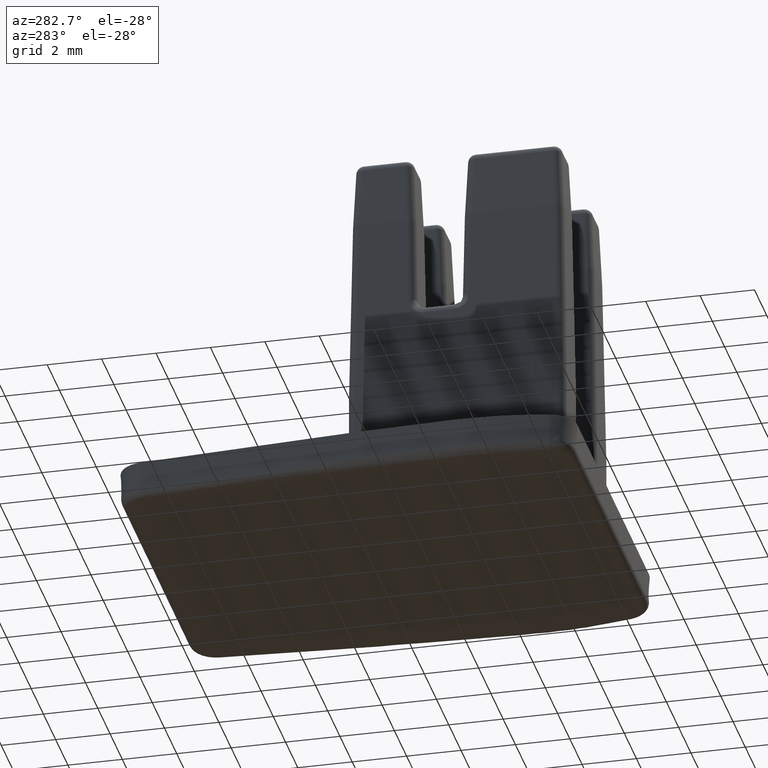
[diagram: clean part render]
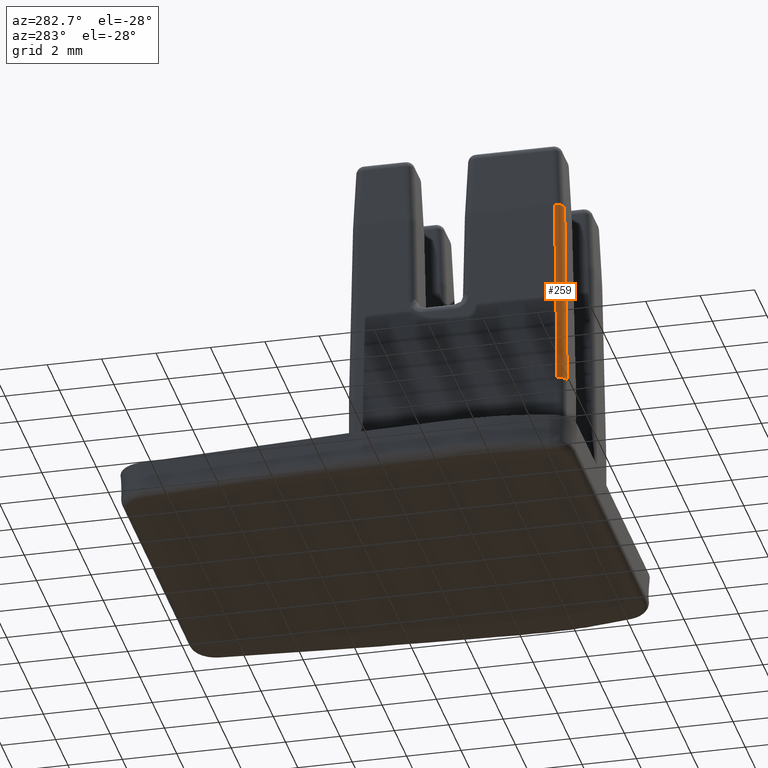
[diagram: same view with one face highlighted and labeled with its STEP entity id]
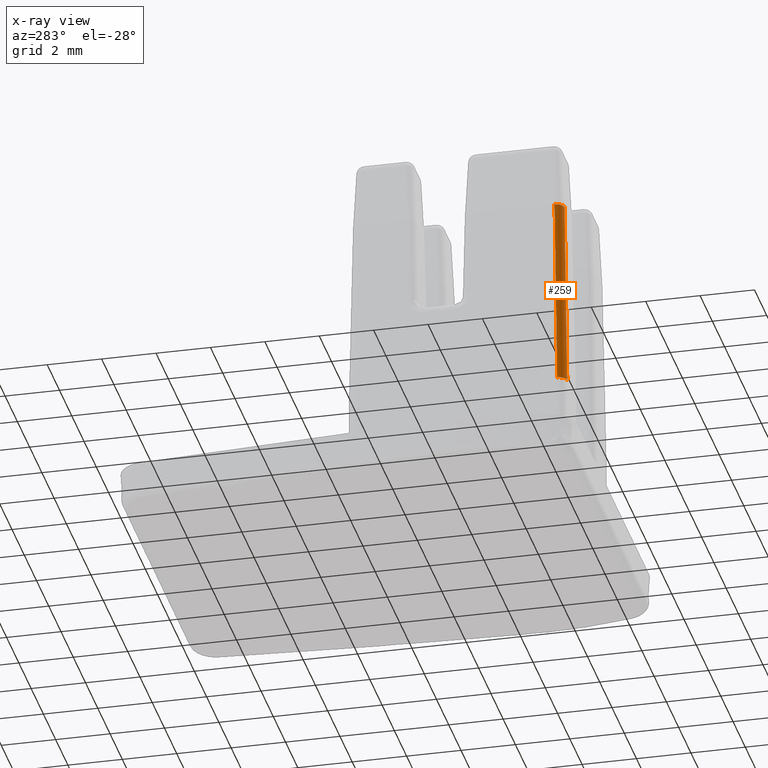
[diagram: x-ray of the same camera — body ghosted, the highlighted face saturated]
A machine part, auxiliary view. The second image highlights one B-rep face of the part: STEP entity #259.
The next image is the same camera in x-ray: the body ghosted, the highlighted face saturated — about 0% of this face is hidden behind the body in this view.
In plain terms, the highlighted cylindrical surface (edge-blend (fillet) strip) has radius 0.3045 mm, axis along (-0.0174, -0.0174, -0.9997).
Its self-contained STEP definition (entity closure, byte-faithful):
#2 = EDGE_CURVE ( 'NONE', #3379, #3383, #3724, .T. ) ;
#13 = EDGE_CURVE ( 'NONE', #3459, #3440, #3799, .T. ) ;
#49 = EDGE_CURVE ( 'NONE', #3440, #3482, #3905, .T. ) ;
#181 = EDGE_CURVE ( 'NONE', #3383, #3459, #4667, .T. ) ;
#187 = EDGE_CURVE ( 'NONE', #3412, #3482, #4670, .T. ) ;
#259 = ADVANCED_FACE ( 'NONE', ( #4585 ), #4565, .T. ) ;
#492 = EDGE_CURVE ( 'NONE', #3412, #3379, #1027, .T. ) ;
#596 = VECTOR ( 'NONE', #3780, 1000.000000000000000 ) ;
#598 = VECTOR ( 'NONE', #3756, 1000.000000000000000 ) ;
#643 = VECTOR ( 'NONE', #3915, 1000.000000000000000 ) ;
#1027 = LINE ( 'NONE', #1028, #5035 ) ;
#1028 = CARTESIAN_POINT ( 'NONE',  ( -242.3003224404635000, -19.65610789647529800, -33.14178803449700400 ) ) ;
#1038 = DIRECTION ( 'NONE',  ( 0.01744974916068284300, 0.01744974916079354200, 0.9996954598818855700 ) ) ;
#1222 = CARTESIAN_POINT ( 'NONE',  ( -242.1774013853594700, -19.53318684137050100, -26.09964550397140200 ) ) ;
#1242 = CARTESIAN_POINT ( 'NONE',  ( -242.3014196216744800, -19.65720507768639900, -33.20464550397130000 ) ) ;
#1244 = CARTESIAN_POINT ( 'NONE',  ( -242.1774013853594700, -19.53343028107399700, -26.09964550397140200 ) ) ;
#1296 = CARTESIAN_POINT ( 'NONE',  ( -241.9969659984995200, -19.96165870086139900, -33.20464550397124300 ) ) ;
#1302 = CARTESIAN_POINT ( 'NONE',  ( -241.8731912018880100, -19.83764046454575000, -26.09964550397135200 ) ) ;
#1326 = CARTESIAN_POINT ( 'NONE',  ( -241.8729477621850200, -19.83764046454575000, -26.09964550397135200 ) ) ;
#2788 = ORIENTED_EDGE ( 'NONE', *, *, #13, .F. ) ;
#2804 = ORIENTED_EDGE ( 'NONE', *, *, #181, .F. ) ;
#2823 = ORIENTED_EDGE ( 'NONE', *, *, #2, .F. ) ;
#2832 = ORIENTED_EDGE ( 'NONE', *, *, #492, .F. ) ;
#2834 = ORIENTED_EDGE ( 'NONE', *, *, #49, .F. ) ;
#2847 = ORIENTED_EDGE ( 'NONE', *, *, #187, .T. ) ;
#3379 = VERTEX_POINT ( 'NONE', #1222 ) ;
#3383 = VERTEX_POINT ( 'NONE', #1244 ) ;
#3412 = VERTEX_POINT ( 'NONE', #1242 ) ;
#3440 = VERTEX_POINT ( 'NONE', #1326 ) ;
#3459 = VERTEX_POINT ( 'NONE', #1302 ) ;
#3482 = VERTEX_POINT ( 'NONE', #1296 ) ;
#3596 = EDGE_LOOP ( 'NONE', ( #2834, #2788, #2804, #2823, #2832, #2847 ) ) ;
#3724 = LINE ( 'NONE', #3752, #598 ) ;
#3752 = CARTESIAN_POINT ( 'NONE',  ( -242.1774013853594700, -16.05390870086055300, -26.09964550397180000 ) ) ;
#3756 = DIRECTION ( 'NONE',  ( -6.982962677686270700E-015, -1.000000000000000000, 1.110223024625280100E-013 ) ) ;
#3780 = DIRECTION ( 'NONE',  ( 1.000000000000000000, -6.982962677686270700E-015, 3.876322972433140000E-028 ) ) ;
#3799 = LINE ( 'NONE', #3801, #596 ) ;
#3801 = CARTESIAN_POINT ( 'NONE',  ( -242.3014196216744800, -19.83764046454575000, -26.09964550397135200 ) ) ;
#3905 = LINE ( 'NONE', #3916, #643 ) ;
#3915 = DIRECTION ( 'NONE',  ( -0.01744974916068279400, -0.01744974916079359400, -0.9996954598818855700 ) ) ;
#3916 = CARTESIAN_POINT ( 'NONE',  ( -241.9970587027239900, -19.96175140508555000, -33.20995652541489600 ) ) ;
#4291 = CARTESIAN_POINT ( 'NONE',  ( -242.1774013853594700, -19.53343028107399700, -26.09964550397140200 ) ) ;
#4292 = CARTESIAN_POINT ( 'NONE',  ( -242.0512262561590300, -19.83740313880886300, -26.09421050204802500 ) ) ;
#4294 = CARTESIAN_POINT ( 'NONE',  ( -241.8731912018880100, -19.83764046454575000, -26.09964550397135200 ) ) ;
#4298 = CARTESIAN_POINT ( 'NONE',  ( -242.1771640596228400, -19.71146533534506400, -26.09421050204803200 ) ) ;
#4340 = CARTESIAN_POINT ( 'NONE',  ( -242.3014196216744800, -19.65720507768639900, -33.20464550397130000 ) ) ;
#4348 = CARTESIAN_POINT ( 'NONE',  ( -242.1752948886235400, -19.96163153800960900, -33.20308940448446600 ) ) ;
#4363 = CARTESIAN_POINT ( 'NONE',  ( -241.9969659984995200, -19.96165870086139900, -33.20464550397124300 ) ) ;
#4368 = CARTESIAN_POINT ( 'NONE',  ( -242.3013924588227300, -19.83553396781045900, -33.20308940448448000 ) ) ;
#4548 = DIRECTION ( 'NONE',  ( -0.01744974916068281100, -0.01744974916079356000, -0.9996954598818856800 ) ) ;
#4565 = CYLINDRICAL_SURFACE ( 'NONE', #4843, 0.3045000000000115400 ) ;
#4568 = DIRECTION ( 'NONE',  ( -0.9998476951563912700, 1.139391445633327600E-014, 0.01745240643728281400 ) ) ;
#4585 = FACE_OUTER_BOUND ( 'NONE', #3596, .T. ) ;
#4586 = CARTESIAN_POINT ( 'NONE',  ( -241.9970587027239900, -19.65729778191055000, -33.21527078317490100 ) ) ;
#4667 =( BOUNDED_CURVE ( )  B_SPLINE_CURVE ( 3, ( #4291, #4298, #4292, #4294 ),
 .UNSPECIFIED., .F., .F. ) 
 B_SPLINE_CURVE_WITH_KNOTS ( ( 4, 4 ),
 ( 5.498738629297618800, 7.067631985061742000 ),
 .UNSPECIFIED. ) 
 CURVE ( )  GEOMETRIC_REPRESENTATION_ITEM ( )  RATIONAL_B_SPLINE_CURVE ( ( 1.000000000000000000, 0.8051861752430484700, 0.8051861752430484700, 1.000000000000000000 ) ) 
 REPRESENTATION_ITEM ( '' )  );
#4670 =( BOUNDED_CURVE ( )  B_SPLINE_CURVE ( 3, ( #4340, #4368, #4348, #4363 ),
 .UNSPECIFIED., .F., .T. ) 
 B_SPLINE_CURVE_WITH_KNOTS ( ( 4, 4 ),
 ( 5.497939442828156100, 7.068431171531155900 ),
 .UNSPECIFIED. ) 
 CURVE ( )  GEOMETRIC_REPRESENTATION_ITEM ( )  RATIONAL_B_SPLINE_CURVE ( ( 1.000000000000000000, 0.8048096431157458800, 0.8048096431157458800, 1.000000000000000000 ) ) 
 REPRESENTATION_ITEM ( '' )  );
#4843 = AXIS2_PLACEMENT_3D ( 'NONE', #4586, #4548, #4568 ) ;
#5035 = VECTOR ( 'NONE', #1038, 1000.000000000000000 ) ;